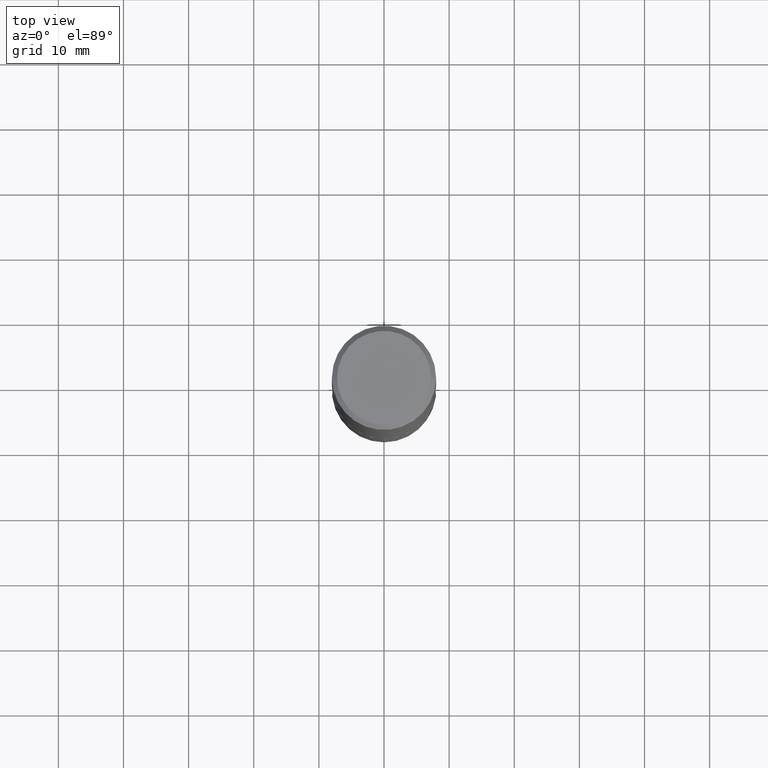
[diagram: clean part render]
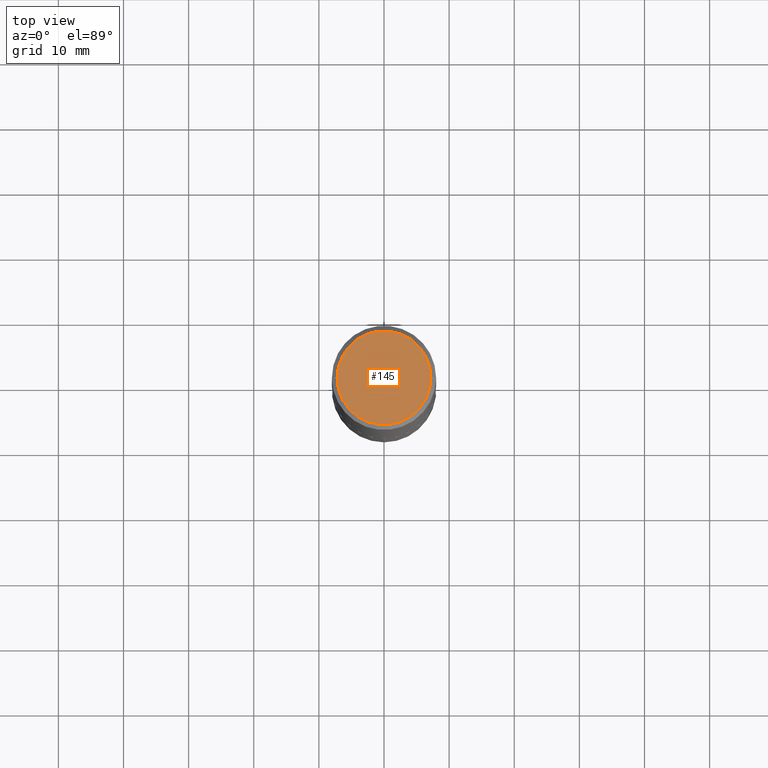
[diagram: same view with one face highlighted and labeled with its STEP entity id]
A machine part, top view. The second image highlights one B-rep face of the part: STEP entity #145.
In plain terms, the highlighted planar face has unit normal (0, -0, -1).
Its self-contained STEP definition (entity closure, byte-faithful):
#18 = CARTESIAN_POINT ( 'NONE',  ( -0.2837000000000000077, 2.035620907579017403E-15, 4.818985154630794339E-18 ) ) ;
#29 = EDGE_CURVE ( 'NONE', #106, #359, #149, .T. ) ;
#51 = ORIENTED_EDGE ( 'NONE', *, *, #238, .T. ) ;
#65 = CARTESIAN_POINT ( 'NONE',  ( -5.892338936576605744E-47, 8.412698369802303245E-33, 2.409492577322419881E-18 ) ) ;
#67 = DIRECTION ( 'NONE',  ( -2.445468806185136597E-29, 3.491481338843145583E-15, 1.000000000000000000 ) ) ;
#86 = DIRECTION ( 'NONE',  ( 2.438088387897960049E-29, -3.491481338843145188E-15, -1.000000000000000000 ) ) ;
#102 = AXIS2_PLACEMENT_3D ( 'NONE', #204, #67, #294 ) ;
#104 = ORIENTED_EDGE ( 'NONE', *, *, #29, .T. ) ;
#106 = VERTEX_POINT ( 'NONE', #194 ) ;
#114 = DIRECTION ( 'NONE',  ( -2.445468806185136597E-29, 3.491481338843145583E-15, 1.000000000000000000 ) ) ;
#118 = CIRCLE ( 'NONE', #102, 0.2837000000000000077 ) ;
#140 = DIRECTION ( 'NONE',  ( -1.000000000000000000, 6.982962677686265922E-15, -4.876176775795935793E-29 ) ) ;
#145 = ADVANCED_FACE ( 'NONE', ( #200 ), #317, .F. ) ;
#149 = CIRCLE ( 'NONE', #240, 0.2837000000000000077 ) ;
#159 = EDGE_LOOP ( 'NONE', ( #51, #104 ) ) ;
#188 = AXIS2_PLACEMENT_3D ( 'NONE', #65, #86, #140 ) ;
#194 = CARTESIAN_POINT ( 'NONE',  ( 0.2837000000000000077, -2.108072959102388127E-15, 4.818985154659137865E-18 ) ) ;
#196 = DIRECTION ( 'NONE',  ( 1.000000000000000000, -6.982962677686267499E-15, 4.876309930827607477E-29 ) ) ;
#200 = FACE_OUTER_BOUND ( 'NONE', #159, .T. ) ;
#204 = CARTESIAN_POINT ( 'NONE',  ( -1.178467787315321149E-46, 1.682539673960460649E-32, 4.818985154644839761E-18 ) ) ;
#238 = EDGE_CURVE ( 'NONE', #359, #106, #118, .T. ) ;
#240 = AXIS2_PLACEMENT_3D ( 'NONE', #292, #114, #196 ) ;
#292 = CARTESIAN_POINT ( 'NONE',  ( -1.178467787315321149E-46, 1.682539673960460649E-32, 4.818985154644839761E-18 ) ) ;
#294 = DIRECTION ( 'NONE',  ( 1.000000000000000000, -6.982962677686267499E-15, 4.876309930827607477E-29 ) ) ;
#317 = PLANE ( 'NONE',  #188 ) ;
#359 = VERTEX_POINT ( 'NONE', #18 ) ;